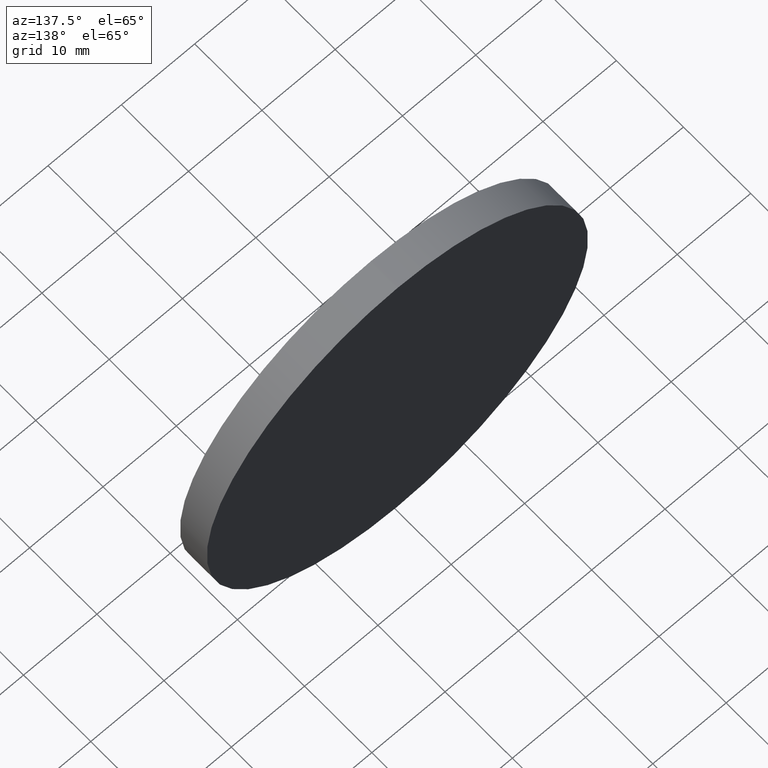
[diagram: clean part render]
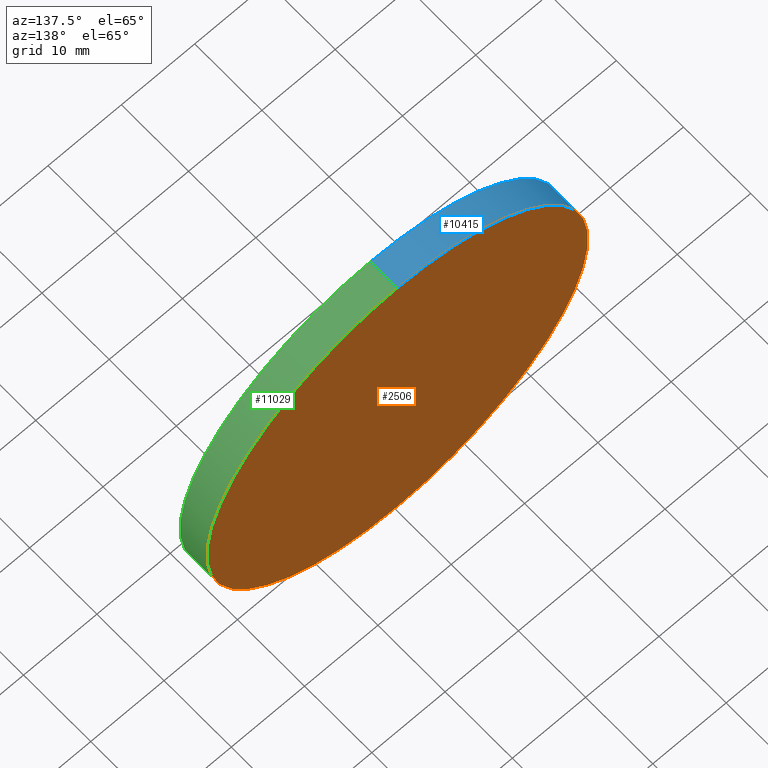
[diagram: same view with three faces highlighted in distinct colors, each labeled with its STEP entity id]
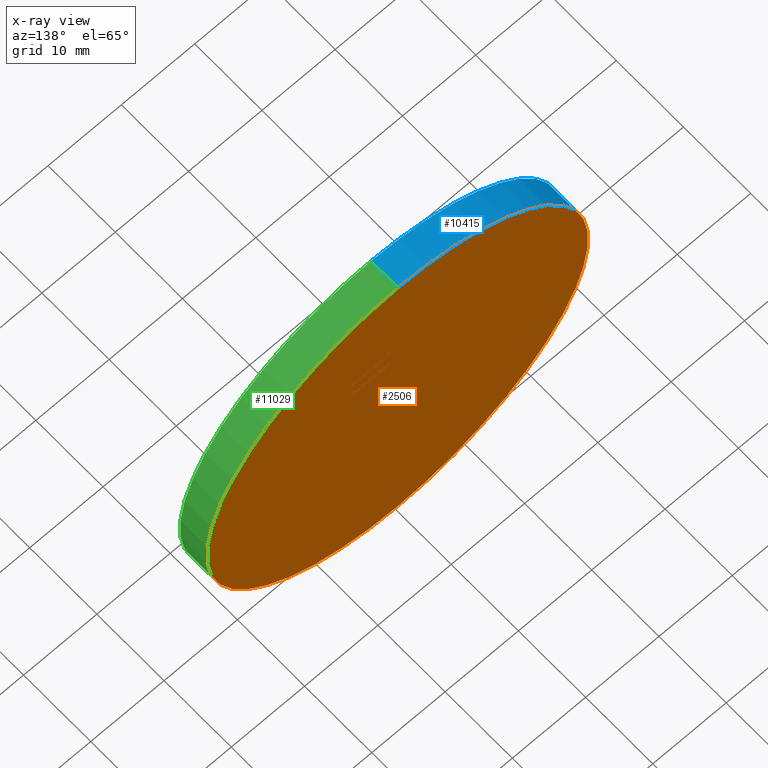
[diagram: x-ray of the same camera — body ghosted, the three highlighted faces saturated]
A machine part, auxiliary view with three faces highlighted in distinct colors.
The next image is the same camera in x-ray (body ghosted, the three faces saturated) — at least one of them is partly hidden behind the body in this view.
Their STEP definitions:

[orange] entity #2506 — the highlighted planar face has unit normal (0, 1, 0).
#564 = FACE_OUTER_BOUND ( 'NONE', #4671, .T. ) ;
#923 = VERTEX_POINT ( 'NONE', #1646 ) ;
#925 = DIRECTION ( 'NONE',  ( 0.000000000000000000, -0.000000000000000000, 1.000000000000000000 ) ) ;
#1181 = DIRECTION ( 'NONE',  ( 0.000000000000000000, 0.000000000000000000, 1.000000000000000000 ) ) ;
#1221 = CARTESIAN_POINT ( 'NONE',  ( 0.000000000000000000, 2.000000000000000000, 0.000000000000000000 ) ) ;
#1646 = CARTESIAN_POINT ( 'NONE',  ( 0.000000000000000000, 2.000000000000000000, -26.00000000000000355 ) ) ;
#2506 = ADVANCED_FACE ( 'NONE', ( #564 ), #9659, .T. ) ;
#3349 = ORIENTED_EDGE ( 'NONE', *, *, #9013, .T. ) ;
#3486 = CARTESIAN_POINT ( 'NONE',  ( 0.000000000000000000, 2.000000000000000000, 0.000000000000000000 ) ) ;
#4384 = DIRECTION ( 'NONE',  ( 0.000000000000000000, 1.000000000000000000, 0.000000000000000000 ) ) ;
#4671 = EDGE_LOOP ( 'NONE', ( #7898, #3349 ) ) ;
#4865 = AXIS2_PLACEMENT_3D ( 'NONE', #9639, #12828, #6729 ) ;
#4956 = VERTEX_POINT ( 'NONE', #7336 ) ;
#5182 = DIRECTION ( 'NONE',  ( 0.000000000000000000, 1.000000000000000000, 0.000000000000000000 ) ) ;
#5361 = AXIS2_PLACEMENT_3D ( 'NONE', #3486, #5182, #925 ) ;
#6444 = AXIS2_PLACEMENT_3D ( 'NONE', #1221, #4384, #1181 ) ;
#6729 = DIRECTION ( 'NONE',  ( 0.000000000000000000, 0.000000000000000000, 1.000000000000000000 ) ) ;
#7130 = EDGE_CURVE ( 'NONE', #923, #4956, #13261, .T. ) ;
#7336 = CARTESIAN_POINT ( 'NONE',  ( 3.184081677783118585E-15, 2.000000000000000000, 26.00000000000000355 ) ) ;
#7898 = ORIENTED_EDGE ( 'NONE', *, *, #7130, .T. ) ;
#9013 = EDGE_CURVE ( 'NONE', #4956, #923, #12274, .T. ) ;
#9639 = CARTESIAN_POINT ( 'NONE',  ( 0.000000000000000000, 2.000000000000000000, 0.000000000000000000 ) ) ;
#9659 = PLANE ( 'NONE',  #5361 ) ;
#12274 = CIRCLE ( 'NONE', #4865, 26.00000000000000355 ) ;
#12828 = DIRECTION ( 'NONE',  ( 0.000000000000000000, 1.000000000000000000, 0.000000000000000000 ) ) ;
#13261 = CIRCLE ( 'NONE', #6444, 26.00000000000000355 ) ;

[blue] entity #10415 — the highlighted cylindrical surface (partial cylindrical patch) has radius 26 mm, axis along (-0, -1, -0).
#158 = CYLINDRICAL_SURFACE ( 'NONE', #3946, 26.00000000000000355 ) ;
#699 = DIRECTION ( 'NONE',  ( 0.000000000000000000, 1.000000000000000000, 0.000000000000000000 ) ) ;
#885 = DIRECTION ( 'NONE',  ( 0.000000000000000000, 0.000000000000000000, 1.000000000000000000 ) ) ;
#923 = VERTEX_POINT ( 'NONE', #1646 ) ;
#1181 = DIRECTION ( 'NONE',  ( 0.000000000000000000, 0.000000000000000000, 1.000000000000000000 ) ) ;
#1221 = CARTESIAN_POINT ( 'NONE',  ( 0.000000000000000000, 2.000000000000000000, 0.000000000000000000 ) ) ;
#1579 = DIRECTION ( 'NONE',  ( -0.000000000000000000, -1.000000000000000000, -0.000000000000000000 ) ) ;
#1646 = CARTESIAN_POINT ( 'NONE',  ( 0.000000000000000000, 2.000000000000000000, -26.00000000000000355 ) ) ;
#1916 = CARTESIAN_POINT ( 'NONE',  ( 0.000000000000000000, 2.000000000000000000, -26.00000000000000355 ) ) ;
#2514 = ORIENTED_EDGE ( 'NONE', *, *, #5633, .F. ) ;
#2661 = CARTESIAN_POINT ( 'NONE',  ( 3.184081677783118585E-15, 2.000000000000000000, 26.00000000000000355 ) ) ;
#3259 = AXIS2_PLACEMENT_3D ( 'NONE', #12145, #699, #885 ) ;
#3481 = EDGE_LOOP ( 'NONE', ( #2514, #8555, #8281, #5478 ) ) ;
#3696 = CARTESIAN_POINT ( 'NONE',  ( 0.000000000000000000, -2.000000000000000000, -26.00000000000000355 ) ) ;
#3946 = AXIS2_PLACEMENT_3D ( 'NONE', #8754, #1579, #8669 ) ;
#4384 = DIRECTION ( 'NONE',  ( 0.000000000000000000, 1.000000000000000000, 0.000000000000000000 ) ) ;
#4956 = VERTEX_POINT ( 'NONE', #7336 ) ;
#5478 = ORIENTED_EDGE ( 'NONE', *, *, #11860, .T. ) ;
#5633 = EDGE_CURVE ( 'NONE', #4956, #11522, #12949, .T. ) ;
#5936 = VERTEX_POINT ( 'NONE', #3696 ) ;
#6444 = AXIS2_PLACEMENT_3D ( 'NONE', #1221, #4384, #1181 ) ;
#7130 = EDGE_CURVE ( 'NONE', #923, #4956, #13261, .T. ) ;
#7336 = CARTESIAN_POINT ( 'NONE',  ( 3.184081677783118585E-15, 2.000000000000000000, 26.00000000000000355 ) ) ;
#8281 = ORIENTED_EDGE ( 'NONE', *, *, #10544, .T. ) ;
#8555 = ORIENTED_EDGE ( 'NONE', *, *, #7130, .F. ) ;
#8669 = DIRECTION ( 'NONE',  ( 0.000000000000000000, 0.000000000000000000, -1.000000000000000000 ) ) ;
#8754 = CARTESIAN_POINT ( 'NONE',  ( 0.000000000000000000, 2.000000000000000000, 0.000000000000000000 ) ) ;
#9085 = CARTESIAN_POINT ( 'NONE',  ( 3.184081677783118585E-15, -2.000000000000000000, 26.00000000000000355 ) ) ;
#9121 = DIRECTION ( 'NONE',  ( -0.000000000000000000, -1.000000000000000000, -0.000000000000000000 ) ) ;
#9353 = CIRCLE ( 'NONE', #3259, 26.00000000000000355 ) ;
#10415 = ADVANCED_FACE ( 'NONE', ( #12254 ), #158, .T. ) ;
#10544 = EDGE_CURVE ( 'NONE', #923, #5936, #11612, .T. ) ;
#10696 = VECTOR ( 'NONE', #12023, 1000.000000000000000 ) ;
#10791 = VECTOR ( 'NONE', #9121, 1000.000000000000000 ) ;
#11522 = VERTEX_POINT ( 'NONE', #9085 ) ;
#11612 = LINE ( 'NONE', #1916, #10791 ) ;
#11860 = EDGE_CURVE ( 'NONE', #5936, #11522, #9353, .T. ) ;
#12023 = DIRECTION ( 'NONE',  ( -0.000000000000000000, -1.000000000000000000, -0.000000000000000000 ) ) ;
#12145 = CARTESIAN_POINT ( 'NONE',  ( 0.000000000000000000, -2.000000000000000000, 0.000000000000000000 ) ) ;
#12254 = FACE_OUTER_BOUND ( 'NONE', #3481, .T. ) ;
#12949 = LINE ( 'NONE', #2661, #10696 ) ;
#13261 = CIRCLE ( 'NONE', #6444, 26.00000000000000355 ) ;

[green] entity #11029 — the highlighted cylindrical surface (partial cylindrical patch) has radius 26 mm, axis along (-0, -1, -0).
#904 = DIRECTION ( 'NONE',  ( 0.000000000000000000, 0.000000000000000000, 1.000000000000000000 ) ) ;
#923 = VERTEX_POINT ( 'NONE', #1646 ) ;
#1583 = AXIS2_PLACEMENT_3D ( 'NONE', #2046, #11233, #904 ) ;
#1646 = CARTESIAN_POINT ( 'NONE',  ( 0.000000000000000000, 2.000000000000000000, -26.00000000000000355 ) ) ;
#1916 = CARTESIAN_POINT ( 'NONE',  ( 0.000000000000000000, 2.000000000000000000, -26.00000000000000355 ) ) ;
#2046 = CARTESIAN_POINT ( 'NONE',  ( 0.000000000000000000, -2.000000000000000000, 0.000000000000000000 ) ) ;
#2661 = CARTESIAN_POINT ( 'NONE',  ( 3.184081677783118585E-15, 2.000000000000000000, 26.00000000000000355 ) ) ;
#3696 = CARTESIAN_POINT ( 'NONE',  ( 0.000000000000000000, -2.000000000000000000, -26.00000000000000355 ) ) ;
#4505 = ORIENTED_EDGE ( 'NONE', *, *, #9013, .F. ) ;
#4865 = AXIS2_PLACEMENT_3D ( 'NONE', #9639, #12828, #6729 ) ;
#4953 = EDGE_LOOP ( 'NONE', ( #4505, #10041, #11636, #6276 ) ) ;
#4956 = VERTEX_POINT ( 'NONE', #7336 ) ;
#5623 = CYLINDRICAL_SURFACE ( 'NONE', #8959, 26.00000000000000355 ) ;
#5633 = EDGE_CURVE ( 'NONE', #4956, #11522, #12949, .T. ) ;
#5684 = CIRCLE ( 'NONE', #1583, 26.00000000000000355 ) ;
#5936 = VERTEX_POINT ( 'NONE', #3696 ) ;
#6276 = ORIENTED_EDGE ( 'NONE', *, *, #10544, .F. ) ;
#6602 = EDGE_CURVE ( 'NONE', #11522, #5936, #5684, .T. ) ;
#6729 = DIRECTION ( 'NONE',  ( 0.000000000000000000, 0.000000000000000000, 1.000000000000000000 ) ) ;
#7241 = CARTESIAN_POINT ( 'NONE',  ( 0.000000000000000000, 2.000000000000000000, 0.000000000000000000 ) ) ;
#7336 = CARTESIAN_POINT ( 'NONE',  ( 3.184081677783118585E-15, 2.000000000000000000, 26.00000000000000355 ) ) ;
#8959 = AXIS2_PLACEMENT_3D ( 'NONE', #7241, #12429, #9305 ) ;
#9013 = EDGE_CURVE ( 'NONE', #4956, #923, #12274, .T. ) ;
#9085 = CARTESIAN_POINT ( 'NONE',  ( 3.184081677783118585E-15, -2.000000000000000000, 26.00000000000000355 ) ) ;
#9121 = DIRECTION ( 'NONE',  ( -0.000000000000000000, -1.000000000000000000, -0.000000000000000000 ) ) ;
#9305 = DIRECTION ( 'NONE',  ( 0.000000000000000000, 0.000000000000000000, -1.000000000000000000 ) ) ;
#9639 = CARTESIAN_POINT ( 'NONE',  ( 0.000000000000000000, 2.000000000000000000, 0.000000000000000000 ) ) ;
#10041 = ORIENTED_EDGE ( 'NONE', *, *, #5633, .T. ) ;
#10544 = EDGE_CURVE ( 'NONE', #923, #5936, #11612, .T. ) ;
#10696 = VECTOR ( 'NONE', #12023, 1000.000000000000000 ) ;
#10791 = VECTOR ( 'NONE', #9121, 1000.000000000000000 ) ;
#11029 = ADVANCED_FACE ( 'NONE', ( #12412 ), #5623, .T. ) ;
#11233 = DIRECTION ( 'NONE',  ( 0.000000000000000000, 1.000000000000000000, 0.000000000000000000 ) ) ;
#11522 = VERTEX_POINT ( 'NONE', #9085 ) ;
#11612 = LINE ( 'NONE', #1916, #10791 ) ;
#11636 = ORIENTED_EDGE ( 'NONE', *, *, #6602, .T. ) ;
#12023 = DIRECTION ( 'NONE',  ( -0.000000000000000000, -1.000000000000000000, -0.000000000000000000 ) ) ;
#12274 = CIRCLE ( 'NONE', #4865, 26.00000000000000355 ) ;
#12412 = FACE_OUTER_BOUND ( 'NONE', #4953, .T. ) ;
#12429 = DIRECTION ( 'NONE',  ( -0.000000000000000000, -1.000000000000000000, -0.000000000000000000 ) ) ;
#12828 = DIRECTION ( 'NONE',  ( 0.000000000000000000, 1.000000000000000000, 0.000000000000000000 ) ) ;
#12949 = LINE ( 'NONE', #2661, #10696 ) ;